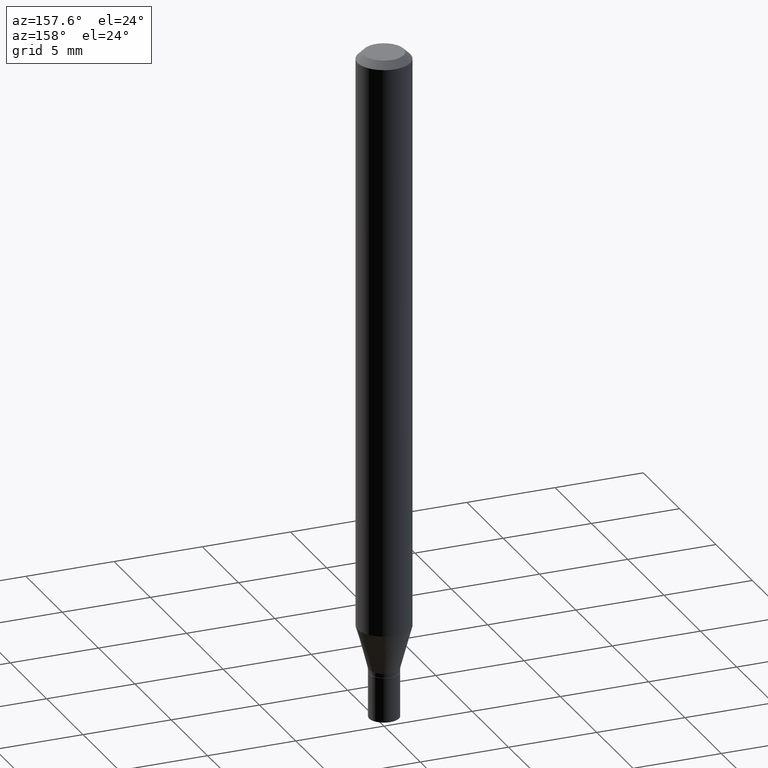
[diagram: clean part render]
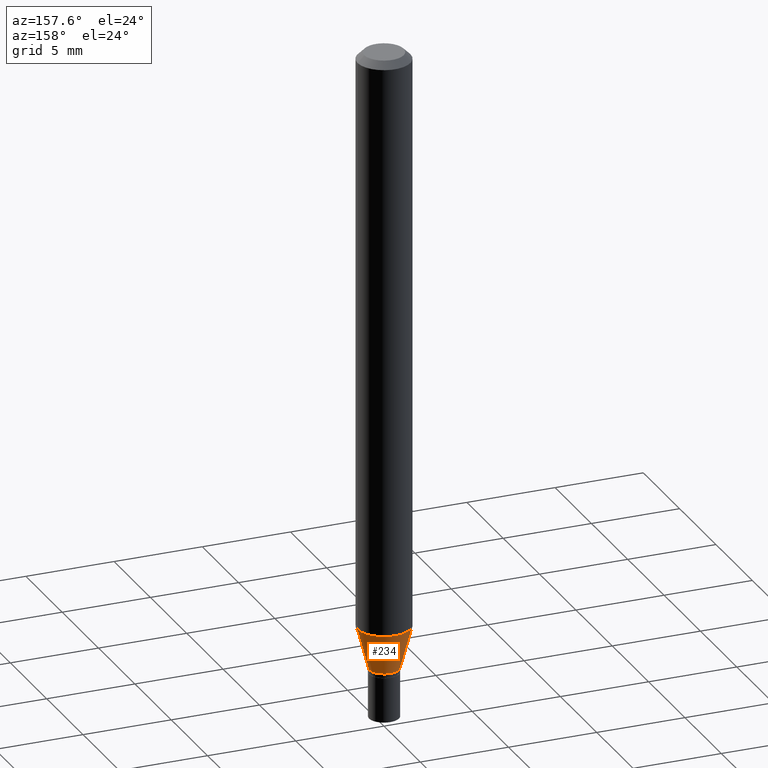
[diagram: same view with one face highlighted and labeled with its STEP entity id]
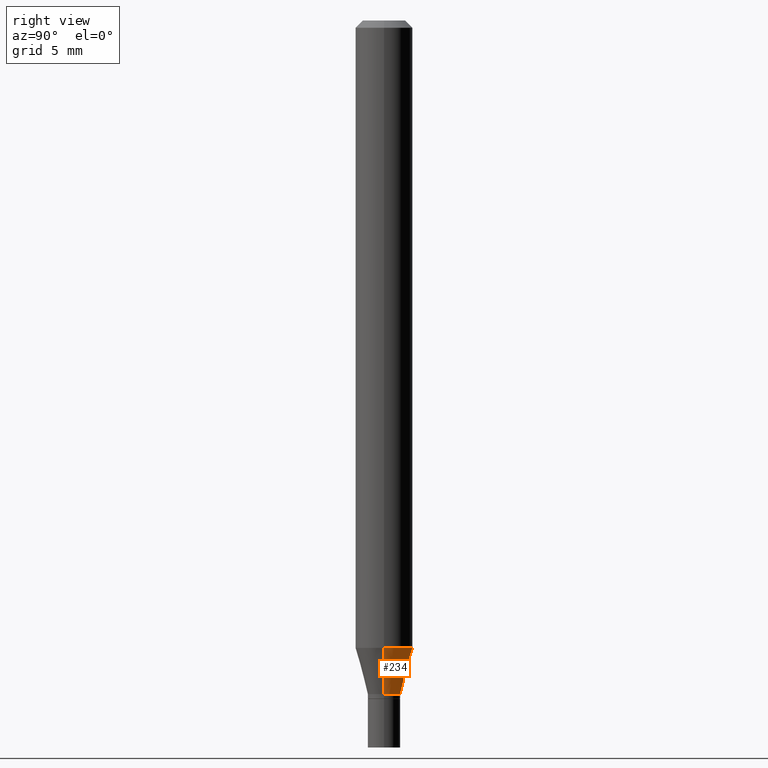
[diagram: same view with one face highlighted and labeled with its STEP entity id]
A machine part, auxiliary view. The second image highlights one B-rep face of the part: STEP entity #234.
A second angle (right view) of the same face is appended — the face is thin or edge-on in the first view.
In plain terms, the highlighted conical surface has half-angle 15 deg.
Its self-contained STEP definition (entity closure, byte-faithful):
#26 = AXIS2_PLACEMENT_3D ( 'NONE', #164, #97, #386 ) ;
#27 = DIRECTION ( 'NONE',  ( 0.2588190451025211836, 1.565188264969622559E-15, 0.9659258262890679791 ) ) ;
#38 = CARTESIAN_POINT ( 'NONE',  ( -0.03344999999999965362, -4.615482515880222190E-15, -1.390000000000000124 ) ) ;
#39 = DIRECTION ( 'NONE',  ( 1.000000000000000000, -6.982962677686265133E-15, 0.000000000000000000 ) ) ;
#42 = DIRECTION ( 'NONE',  ( 1.000000000000000000, -6.982962677686273021E-15, 0.000000000000000000 ) ) ;
#45 = EDGE_CURVE ( 'NONE', #303, #284, #358, .T. ) ;
#47 = CARTESIAN_POINT ( 'NONE',  ( 3.165560326472339188E-29, -4.519581185785793570E-15, -1.294459499326235941 ) ) ;
#48 = ORIENTED_EDGE ( 'NONE', *, *, #248, .T. ) ;
#69 = CONICAL_SURFACE ( 'NONE', #174, 0.03344999999999965362, 0.2617993877991499074 ) ;
#71 = CARTESIAN_POINT ( 'NONE',  ( 3.399201640597340139E-29, -4.853159060991973192E-15, -1.390000000000000124 ) ) ;
#75 = DIRECTION ( 'NONE',  ( -2.445468806185136597E-29, 3.491481338843145583E-15, 1.000000000000000000 ) ) ;
#81 = CIRCLE ( 'NONE', #345, 0.05904999999999999832 ) ;
#94 = CARTESIAN_POINT ( 'NONE',  ( -0.03344999999999965362, -4.357744108099838923E-15, -1.390000000000000124 ) ) ;
#97 = DIRECTION ( 'NONE',  ( -2.445468806185136597E-29, 3.491481338843145583E-15, 1.000000000000000000 ) ) ;
#113 = VERTEX_POINT ( 'NONE', #423 ) ;
#116 = VERTEX_POINT ( 'NONE', #94 ) ;
#129 = ORIENTED_EDGE ( 'NONE', *, *, #146, .T. ) ;
#137 = CIRCLE ( 'NONE', #26, 0.03344999999999965362 ) ;
#141 = DIRECTION ( 'NONE',  ( -2.445468806185136597E-29, 3.491481338843145583E-15, 1.000000000000000000 ) ) ;
#145 = LINE ( 'NONE', #38, #432 ) ;
#146 = EDGE_CURVE ( 'NONE', #303, #116, #137, .T. ) ;
#164 = CARTESIAN_POINT ( 'NONE',  ( 3.399201640597340139E-29, -4.853159060991973192E-15, -1.390000000000000124 ) ) ;
#165 = EDGE_LOOP ( 'NONE', ( #129, #48, #463, #410 ) ) ;
#174 = AXIS2_PLACEMENT_3D ( 'NONE', #71, #141, #39 ) ;
#217 = FACE_OUTER_BOUND ( 'NONE', #165, .T. ) ;
#219 = DIRECTION ( 'NONE',  ( -0.2588190451025211836, 5.211531920934547886E-15, 0.9659258262890679791 ) ) ;
#234 = ADVANCED_FACE ( 'NONE', ( #217 ), #69, .T. ) ;
#248 = EDGE_CURVE ( 'NONE', #116, #113, #145, .T. ) ;
#284 = VERTEX_POINT ( 'NONE', #433 ) ;
#303 = VERTEX_POINT ( 'NONE', #429 ) ;
#336 = EDGE_CURVE ( 'NONE', #284, #113, #81, .T. ) ;
#345 = AXIS2_PLACEMENT_3D ( 'NONE', #47, #75, #42 ) ;
#358 = LINE ( 'NONE', #385, #388 ) ;
#385 = CARTESIAN_POINT ( 'NONE',  ( 0.03344999999999965362, -5.086739162560575892E-15, -1.390000000000000124 ) ) ;
#386 = DIRECTION ( 'NONE',  ( 1.000000000000000000, -6.982962677686265133E-15, 0.000000000000000000 ) ) ;
#388 = VECTOR ( 'NONE', #27, 39.37007874015748854 ) ;
#410 = ORIENTED_EDGE ( 'NONE', *, *, #45, .F. ) ;
#423 = CARTESIAN_POINT ( 'NONE',  ( -0.05904999999999999832, -4.100005700319454866E-15, -1.294459499326235941 ) ) ;
#429 = CARTESIAN_POINT ( 'NONE',  ( 0.03344999999999965362, -5.086739162560575892E-15, -1.390000000000000124 ) ) ;
#432 = VECTOR ( 'NONE', #219, 39.37007874015748854 ) ;
#433 = CARTESIAN_POINT ( 'NONE',  ( 0.05904999999999999832, -4.931925131903167702E-15, -1.294459499326235941 ) ) ;
#463 = ORIENTED_EDGE ( 'NONE', *, *, #336, .F. ) ;